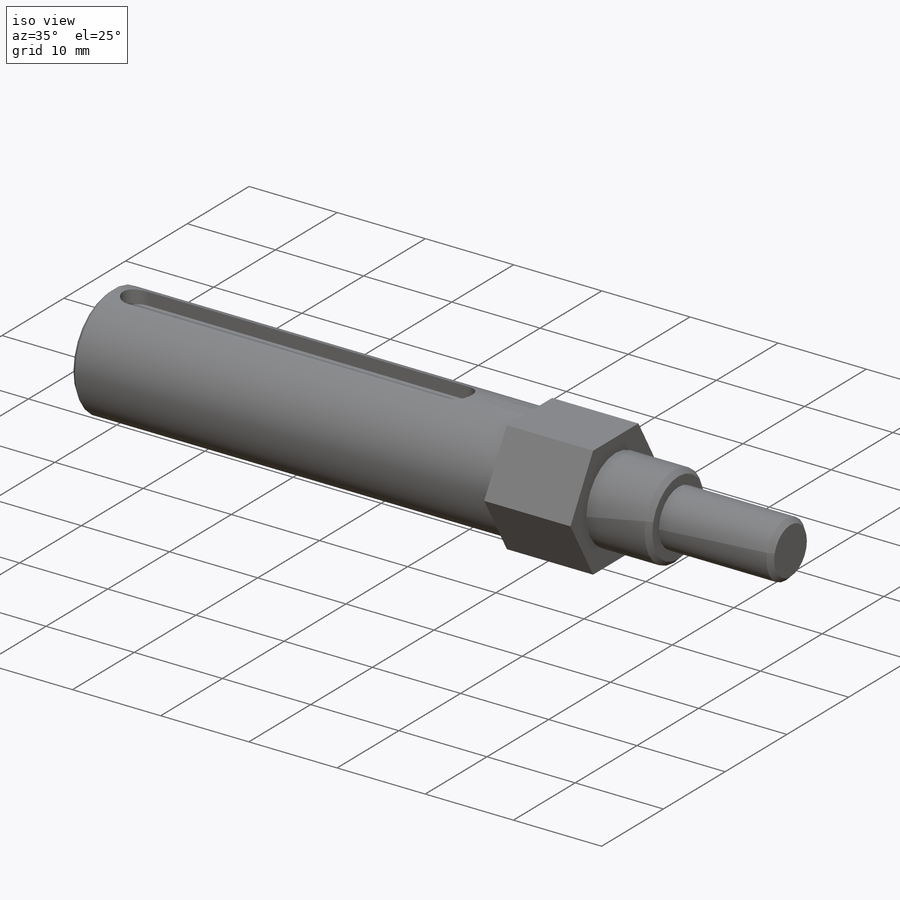
[diagram: iso view]
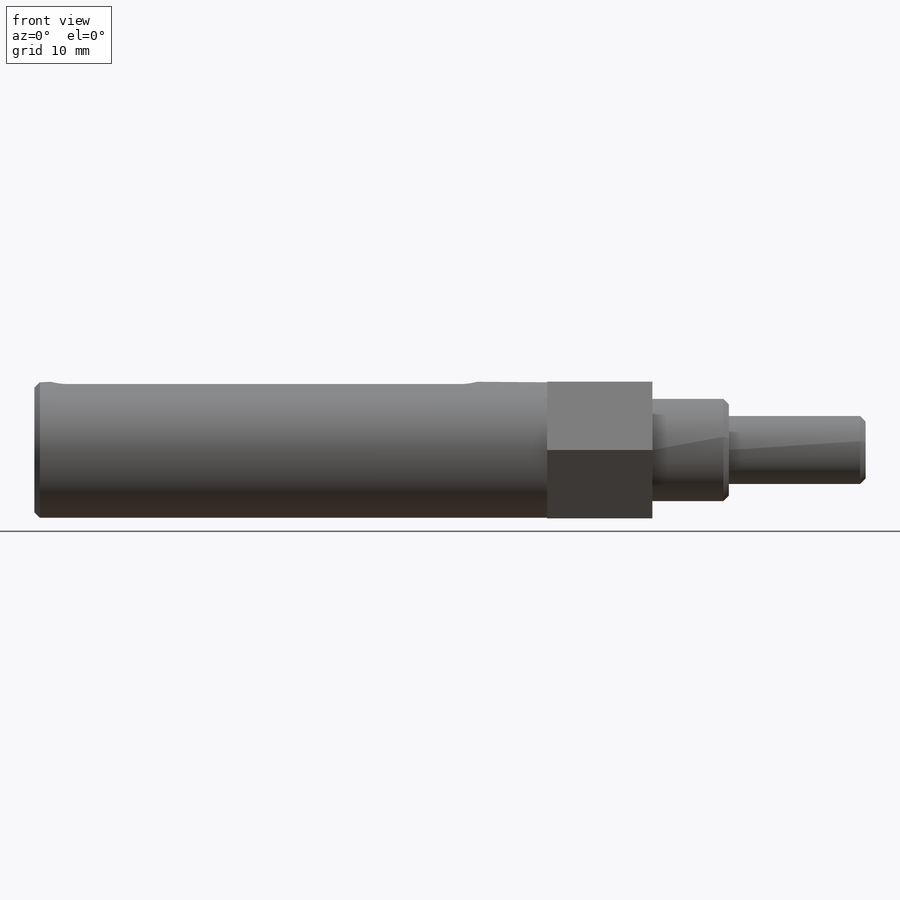
[diagram: front view]
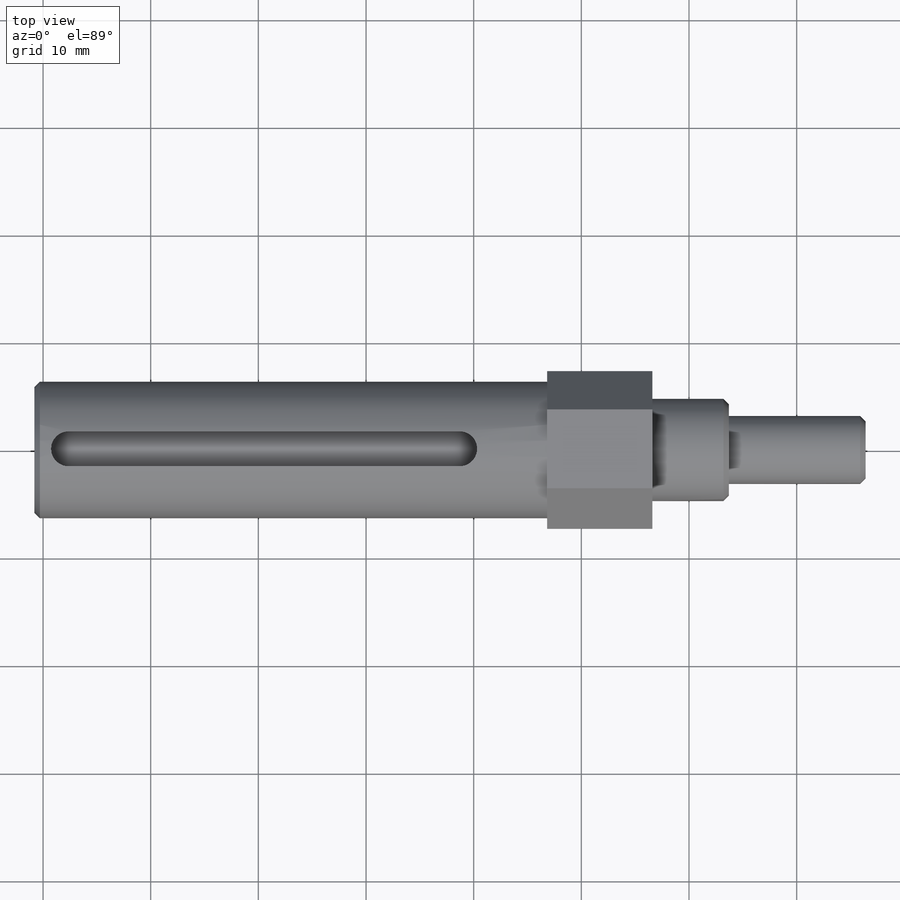
[diagram: top view]
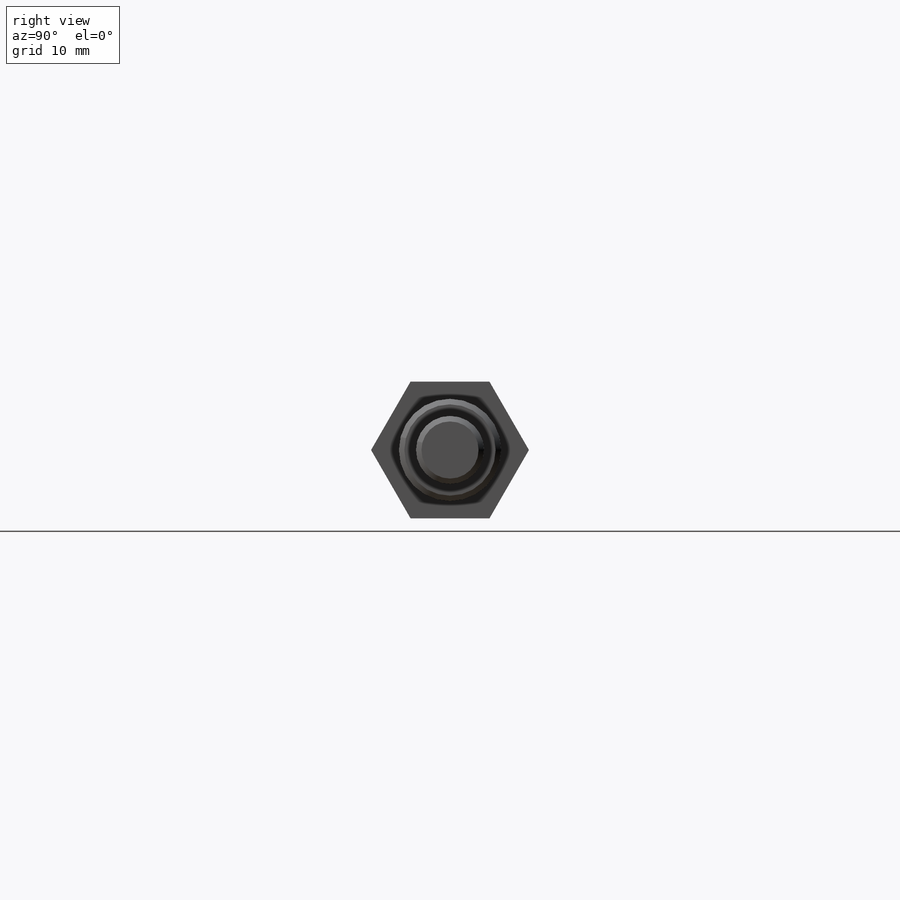
[diagram: right view]
SOLIDWORKS PART (.sldprt)
format: sldprt  version: not decoded by parser v0  size: 283,648 bytes
history: native  units: mm
features: sketch x3, material x1, revolve x1, thread x1, extrude x1, cut_extrude x1, fillet x1, chamfer x1 (+14 scaffold rows collapsed)
feature tree (24):
  scaffold x14  (default folders/planes/origin — collapsed)
  material  "AISI 4130 Steel, annealed at 865C"
  sketch  "Sketch1"  dims[c1.D1=12.6746mm c1.D2=~4.97586mm c1.D3=15.875mm c1.D4=17.827mm c1.D5=48.6918mm c1.D6=10.6172mm c1.D7=11.176mm c1.D8=1.4986mm c1.D9=13.2842mm c1.D10=9.4996mm c1.D11=7.112mm c1.D12=6.3243mm c1.D13=12.7mm c2.D4=~2.902502mm c3.D4=59.0deg c3.D5=57.404mm c3.D6=16.4084mm]
  revolve  "Revolve1"  [1 undecoded]
  thread  "Cosmetic Thread1"  Diameter=15.24mm  [1 undecoded]
  sketch  "Sketch2"  dims[c1.D1=~6.032166mm c2.D1=7.3323deg c3.D1=14.6674mm c3.D2=7.3323mm c3.D3=12.6746mm c4.D1=12.7mm]
  extrude  "Extrude1"  Depth=9.779mm
  sketch  "Sketch4"  dims[D2=1.6256mm D3=3.2512mm D1=0.0mm]
  cut_extrude  "Extrude3"  Depth=39.5732mm
  fillet  "Fillet1"  Radius=1.6256mm
  chamfer  "Chamfer1"  Distance=0.508092mm Angle=45deg
decode coverage: 8 of 9 modeling features carry decoded parameters
note: ~ marks probable driven/reference dimensions
note: 2 parameter values undecoded
note: suppression state not decoded; provenance and decode notes live in map.json
